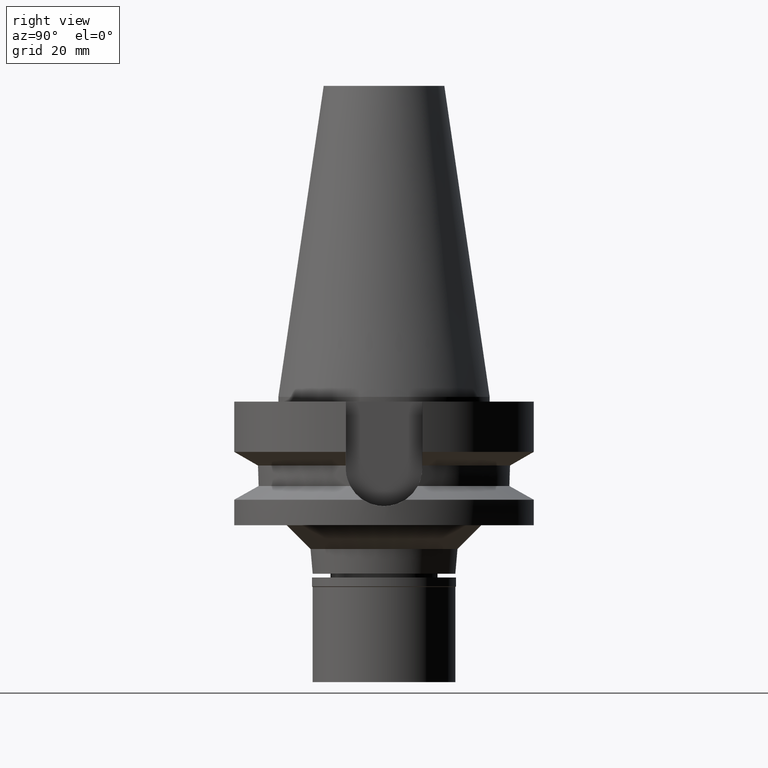
[diagram: clean part render]
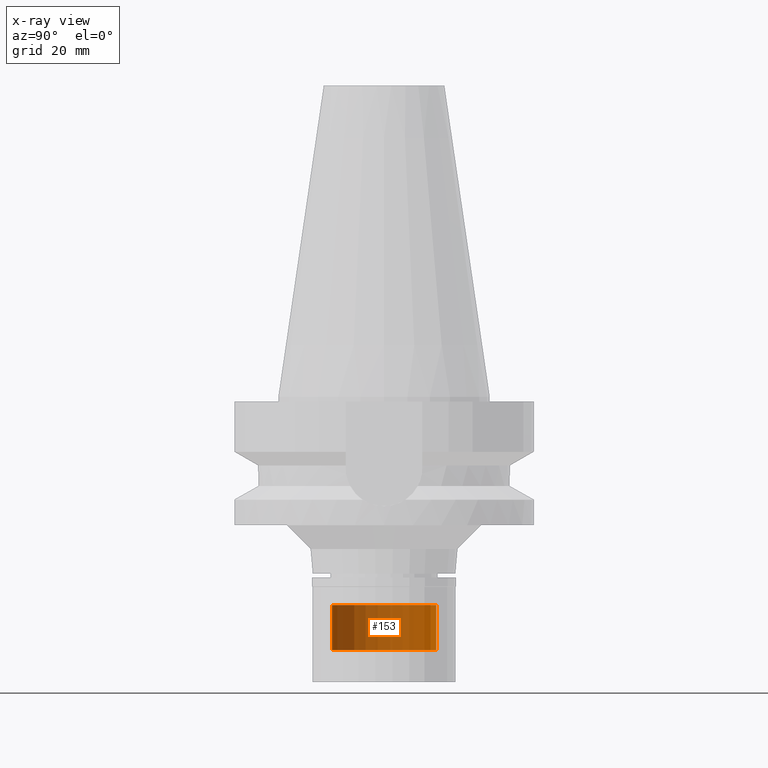
[diagram: x-ray — body ghosted, one internal face saturated and labeled with its STEP entity id]
A machine part, right view, then the same camera in x-ray: the body is ghosted and one INTERNAL B-rep face — a face not visible from any outside direction — is saturated and labeled: STEP entity #153.
In plain terms, the highlighted cylindrical surface (partial cylindrical patch) has radius 11 mm, axis along (0, 0, -1).
Its self-contained STEP definition (entity closure, byte-faithful):
#18 = ORIENTED_EDGE ( 'NONE', *, *, #1042, .F. ) ;
#37 = LINE ( 'NONE', #2887, #1000 ) ;
#92 = EDGE_CURVE ( 'NONE', #1771, #2065, #2880, .T. ) ;
#153 = ADVANCED_FACE ( 'NONE', ( #1067 ), #2013, .T. ) ;
#232 = DIRECTION ( 'NONE',  ( 0.0000000000000000000, 0.0000000000000000000, -1.000000000000000000 ) ) ;
#380 = DIRECTION ( 'NONE',  ( 0.0000000000000000000, 1.000000000000000000, 0.0000000000000000000 ) ) ;
#680 = VERTEX_POINT ( 'NONE', #2293 ) ;
#836 = CARTESIAN_POINT ( 'NONE',  ( 0.0000000000000000000, 11.00000000000000000, -53.29999999999999716 ) ) ;
#975 = DIRECTION ( 'NONE',  ( 0.0000000000000000000, 0.0000000000000000000, -1.000000000000000000 ) ) ;
#986 = CARTESIAN_POINT ( 'NONE',  ( 0.0000000000000000000, -11.00000000000000000, -43.79999999999999716 ) ) ;
#1000 = VECTOR ( 'NONE', #975, 1000.000000000000000 ) ;
#1002 = EDGE_CURVE ( 'NONE', #1461, #680, #1157, .T. ) ;
#1042 = EDGE_CURVE ( 'NONE', #1461, #2065, #37, .T. ) ;
#1067 = FACE_OUTER_BOUND ( 'NONE', #2334, .T. ) ;
#1157 = CIRCLE ( 'NONE', #1537, 11.00000000000000000 ) ;
#1239 = AXIS2_PLACEMENT_3D ( 'NONE', #2516, #1362, #380 ) ;
#1362 = DIRECTION ( 'NONE',  ( 0.0000000000000000000, 0.0000000000000000000, 1.000000000000000000 ) ) ;
#1415 = ORIENTED_EDGE ( 'NONE', *, *, #1002, .T. ) ;
#1461 = VERTEX_POINT ( 'NONE', #986 ) ;
#1479 = CARTESIAN_POINT ( 'NONE',  ( 0.0000000000000000000, 2.098248593318999714E-14, -43.79999999999999716 ) ) ;
#1537 = AXIS2_PLACEMENT_3D ( 'NONE', #1479, #2689, #2675 ) ;
#1582 = AXIS2_PLACEMENT_3D ( 'NONE', #2723, #1832, #2045 ) ;
#1647 = CARTESIAN_POINT ( 'NONE',  ( 0.0000000000000000000, 11.00000000000000000, -43.79999999999999716 ) ) ;
#1771 = VERTEX_POINT ( 'NONE', #836 ) ;
#1832 = DIRECTION ( 'NONE',  ( 0.0000000000000000000, 0.0000000000000000000, -1.000000000000000000 ) ) ;
#1861 = CARTESIAN_POINT ( 'NONE',  ( 0.0000000000000000000, -11.00000000000000000, -53.29999999999999716 ) ) ;
#1927 = LINE ( 'NONE', #1647, #1994 ) ;
#1930 = EDGE_CURVE ( 'NONE', #680, #1771, #1927, .T. ) ;
#1994 = VECTOR ( 'NONE', #232, 1000.000000000000000 ) ;
#2013 = CYLINDRICAL_SURFACE ( 'NONE', #1582, 11.00000000000000000 ) ;
#2045 = DIRECTION ( 'NONE',  ( 0.0000000000000000000, -1.000000000000000000, 0.0000000000000000000 ) ) ;
#2065 = VERTEX_POINT ( 'NONE', #1861 ) ;
#2293 = CARTESIAN_POINT ( 'NONE',  ( 0.0000000000000000000, 11.00000000000000000, -43.79999999999999716 ) ) ;
#2334 = EDGE_LOOP ( 'NONE', ( #2946, #18, #1415, #2466 ) ) ;
#2466 = ORIENTED_EDGE ( 'NONE', *, *, #1930, .T. ) ;
#2516 = CARTESIAN_POINT ( 'NONE',  ( 0.0000000000000000000, 2.098248593318999714E-14, -53.29999999999999716 ) ) ;
#2675 = DIRECTION ( 'NONE',  ( 0.0000000000000000000, -1.000000000000000000, 0.0000000000000000000 ) ) ;
#2689 = DIRECTION ( 'NONE',  ( 0.0000000000000000000, 0.0000000000000000000, -1.000000000000000000 ) ) ;
#2723 = CARTESIAN_POINT ( 'NONE',  ( 0.0000000000000000000, 2.098248593318999714E-14, 71.33499999999999375 ) ) ;
#2880 = CIRCLE ( 'NONE', #1239, 11.00000000000000000 ) ;
#2887 = CARTESIAN_POINT ( 'NONE',  ( 0.0000000000000000000, -11.00000000000000000, -43.79999999999999716 ) ) ;
#2946 = ORIENTED_EDGE ( 'NONE', *, *, #92, .T. ) ;